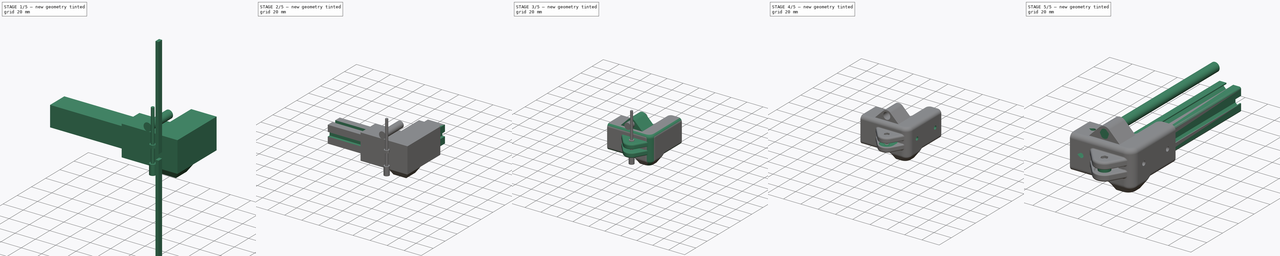
[diagram: build sequence overview — one tinted view per stage of 5, left to right]
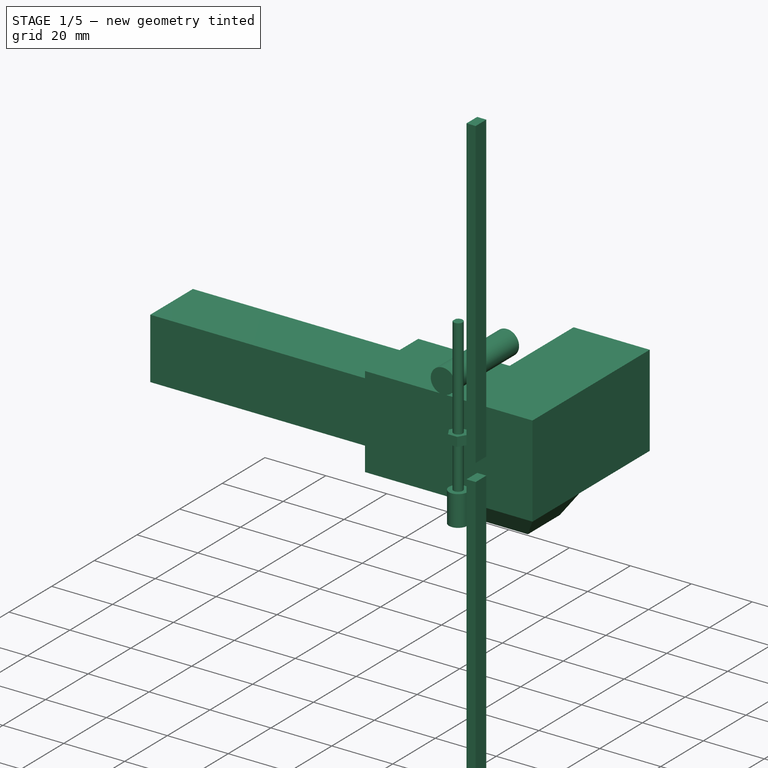
[diagram: stage 1 of 5 — iso view after this stage's code; geometry added in this stage tinted green]
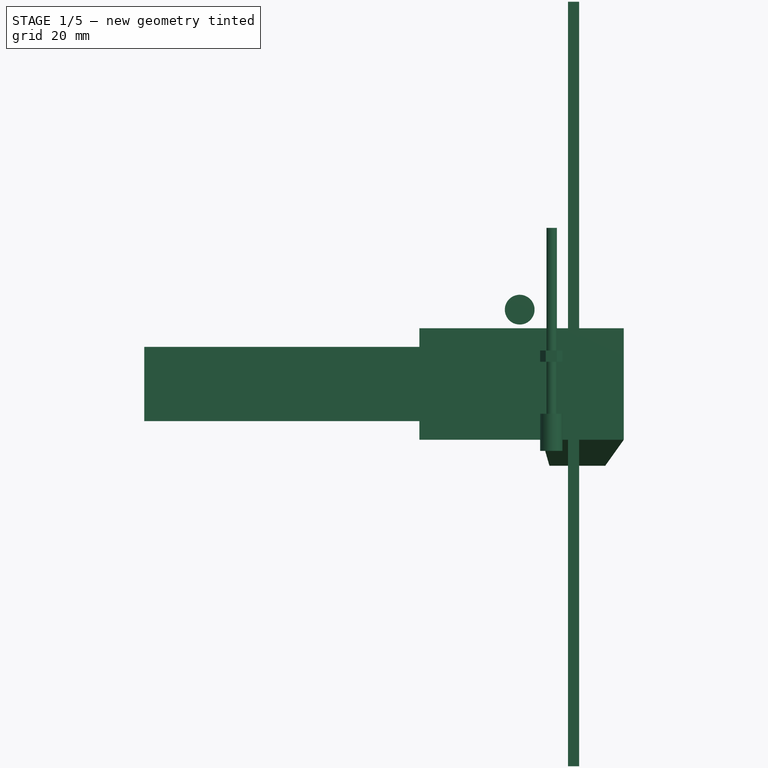
[diagram: stage 1 of 5 — front view after this stage's code; geometry added in this stage tinted green]
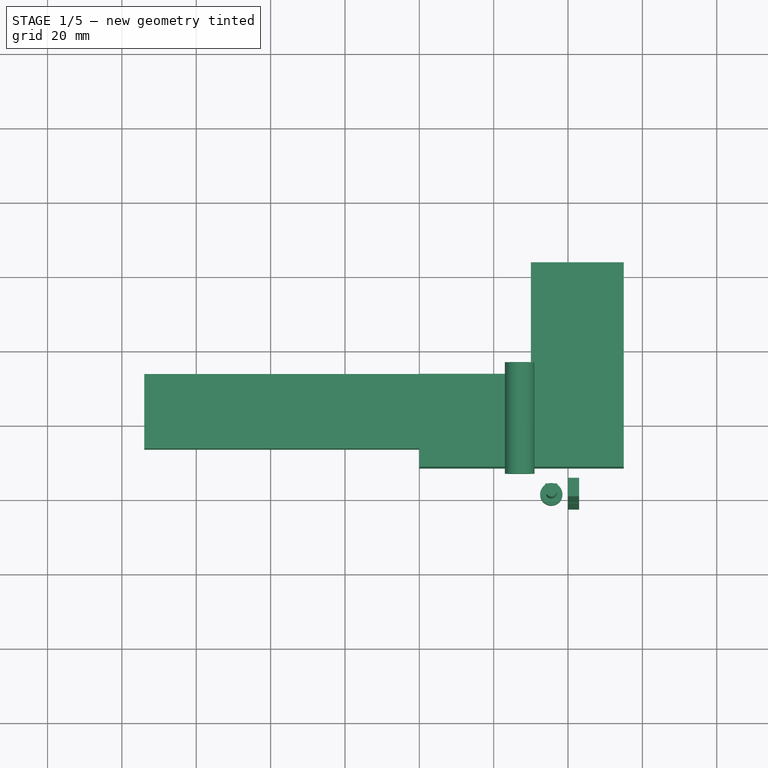
[diagram: stage 1 of 5 — top view after this stage's code; geometry added in this stage tinted green]
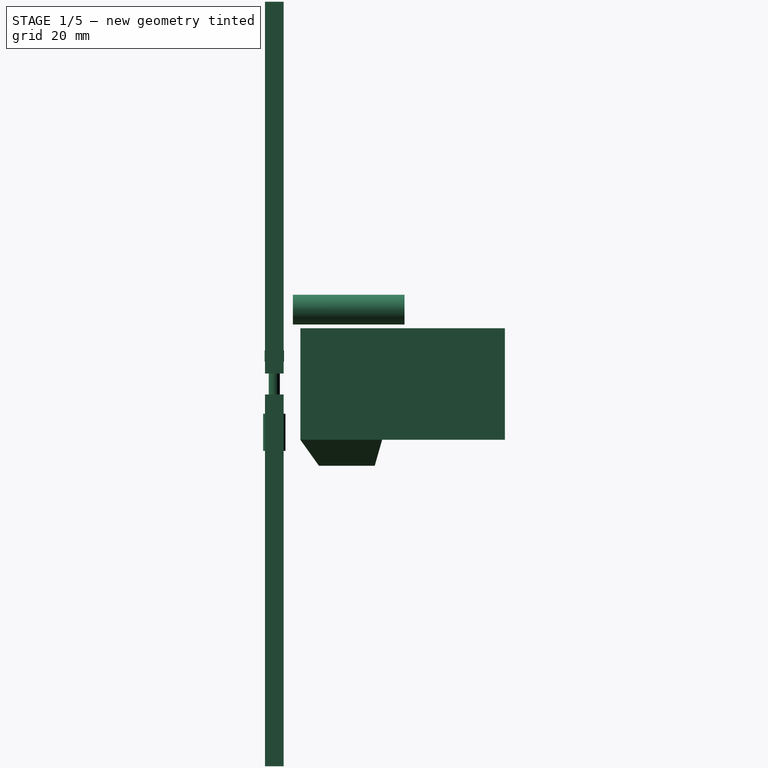
[diagram: stage 1 of 5 — right view after this stage's code; geometry added in this stage tinted green]
FCSTD DOCUMENT  (FreeCAD 0.16R6698 (Git))
Label: FrontCorner
License: All rights reserved
LicenseURL: http://en.wikipedia.org/wiki/All_rights_reserved
objects: Sketcher::SketchObject×18, Part::FeaturePython×16, Part::Cut×14, PartDesign::Pad×13, Part::Feature×4, App::DocumentObjectGroup×4, Part::Fillet×4, Part::MultiFuse×4, Part::Mirroring×3, Part::Box×3, Part::Chamfer×3, Part::Extrusion×2, Part::Compound×2, Part::MultiCommon×2, Spreadsheet::Sheet×1, PartDesign::Draft×1, Part::Loft×1, PartDesign::Pocket×1, Part::Cylinder×1
note: 106 computed .brp shape members not serialized (recipe doc carries the construction recipe); baked Part::Feature solids carry a one-line shape summary decoded from their .brp

FEATURE [Spreadsheet::Sheet] Spreadsheet  label="Parameters"
  cells = A1=Profile Tolerance; B1=0; A2=Smooth Rod Tolerance; B2=0
FEATURE [Sketcher::SketchObject] Sketch001  label="Base"
  sketch-geometry (6):
    g0: LineSegment StartX=15 StartY=62 StartZ=0 EndX=-10 EndY=62 EndZ=0
    g1: LineSegment StartX=-10 StartY=62 StartZ=0 EndX=-10 EndY=32 EndZ=0
    g2: LineSegment StartX=-10 StartY=32 StartZ=0 EndX=-40 EndY=32 EndZ=0
    g3: LineSegment StartX=-40 StartY=32 StartZ=0 EndX=-40 EndY=7 EndZ=0
    g4: LineSegment StartX=-40 StartY=7 StartZ=0 EndX=15 EndY=7 EndZ=0
    g5: LineSegment StartX=15 StartY=7 StartZ=0 EndX=15 EndY=62 EndZ=0
  constraints (18):
    c: Coincident(g0,g1)
    c: Coincident(g1,g2)
    c: Coincident(g2,g3)
    c: Coincident(g3,g4)
    c: Coincident(g5,g0)
    c: Horizontal(g0)
    c: Horizontal(g2)
    c: Horizontal(g4)
    c: Vertical(g3)
    c: Vertical(g1)
    c: Vertical(g5)
    c: DistanceX(g0,g0) = 25
    c: DistanceY(g3,g3) = 25
    c: DistanceY(g2) = 32
    c: DistanceX(g0) = -10
    c: DistanceX(g2,g2) = 30
    c: DistanceY(g1,g1) = 30
    c: Coincident(g4,g5)
FEATURE [Part::Feature] Cut004004008  label="LIdlerHold"
  Placement = pos=(0,22,0) rot=(0,0,1;0rad)
  shape: bbox 90 x 80 x 49 mm, 170 faces (baked)
FEATURE [PartDesign::Pad] Pad  label="Base001"
  Length = 30
  Length2 = 100
  Midplane = true
  Sketch = -> Sketch001
  Type = 0
FEATURE [Sketcher::SketchObject] Sketch037  label="IdlerBoltHead"
  sketch-geometry (1):
    g0: Circle CenterX=0 CenterY=0 CenterZ=0 NormalX=0 NormalY=0 NormalZ=1 Radius=3
  constraints (2):
    c: Coincident(g0,g-1)
    c: Radius(g0) = 3
FEATURE [PartDesign::Pad] Pad009  label="IdlerBoltHead001"
  Length = 10
  Length2 = 100
  Reversed = true
  Sketch = -> Sketch037
  Type = 0
FEATURE [Sketcher::SketchObject] Sketch038  label="IdlerBolt"
  Support = -> Pad009 [Face2]
  sketch-geometry (5):
    g0: ArcOfCircle CenterX=0 CenterY=0 CenterZ=0 NormalX=0 NormalY=0 NormalZ=1 Radius=1.5 StartAngle=3.66519 EndAngle=8.90118
    g1: LineSegment StartX=-1.29904 StartY=-0.75 StartZ=0 EndX=-1.29904 EndY=0.75 EndZ=0
    g2: LineSegment [constr] StartX=5.65685 StartY=0 StartZ=0 EndX=0 EndY=0 EndZ=0
    g3: LineSegment [constr] StartX=-1.29904 StartY=0.75 StartZ=0 EndX=0 EndY=0 EndZ=0
    g4: LineSegment [constr] StartX=-1.29904 StartY=-0.75 StartZ=0 EndX=0 EndY=0 EndZ=0
  constraints (12):
    c: Coincident(g2,g0)
    c: Coincident(g0,g1)
    c: Coincident(g1,g0)
    c: Horizontal(g2)
    c: Radius(g0) = 1.5
    c: Coincident(g0,g-1)
    c: Vertical(g1)
    c: Coincident(g3,g4)
    c: Coincident(g3,g-1)
    c: Coincident(g4,g0)
    c: Coincident(g3,g0)
    c: Angle(g3,g4) = 1.0472
FEATURE [PartDesign::Pad] Pad010  label="IdlerBolt001"
  Length = 50
  Length2 = 100
  Sketch = -> Sketch038
  Type = 0
FEATURE [PartDesign::Pad] Pad011  label="M3Nut001"
  Length = 3
  Length2 = 100
  Placement = pos=(0,0,15) rot=(0,0,1;0rad)
  Sketch = -> Sketch033
  Type = 0
FEATURE [Part::Box] Box004  label="Vert20Prof"
  Height = 20
  Length = 20
  Placement = pos=(-10,-10,-10) rot=(0,0,1;0rad)
  Width = 100
FEATURE [Part::Box] Box001  label="20GuideHalf"
  Height = 100
  Length = 3
  Placement = pos=(0,-2.5,2.825) rot=(0,0,1;0rad)
  Width = 5
FEATURE [Part::Box] Box002  label="20GuideHalf001"
  Height = 100
  Length = 3
  Placement = pos=(0,2.5,-2.825) rot=(1,0,0;3.14159rad)
  Width = 5
FEATURE [Part::FeaturePython] Clone028  label="Clone of Vert20Prof"  # Draft clone (typed FeaturePython)
  Objects = -> [Box004]
  Placement = pos=(-14,12,-10) rot=(0,0,1;1.5708rad)
  Scale = (1,1,1)
FEATURE [Part::Feature] Fillet001  label="FrontIdler"
  Placement = pos=(-4.5,0,-2) rot=(0,0,1;0rad)
  shape: bbox 15.35 x 15.35 x 5 mm, 10 faces (baked)
FEATURE [App::DocumentObjectGroup] Group  label="Reference"
  Group = -> [Clone018,Fillet002,Sketch,Part__Mirroring001,Part__Mirroring,Cut004004008,Fillet001]
FEATURE [Sketcher::SketchObject] Sketch045  label="FootBase"
  Placement = pos=(0,0,-15) rot=(1,0,0;3.14159rad)
  Support = -> Pad [Face7]
  sketch-geometry (4):
    g0: LineSegment StartX=15 StartY=-7 StartZ=0 EndX=-7 EndY=-7 EndZ=0
    g1: LineSegment StartX=-7 StartY=-7 StartZ=0 EndX=-7 EndY=-29 EndZ=0
    g2: LineSegment StartX=-7 StartY=-29 StartZ=0 EndX=15 EndY=-29 EndZ=0
    g3: LineSegment StartX=15 StartY=-29 StartZ=0 EndX=15 EndY=-7 EndZ=0
  constraints (12):
    c: Coincident(g0,g1)
    c: Coincident(g1,g2)
    c: Coincident(g2,g3)
    c: Coincident(g3,g0)
    c: Horizontal(g0)
    c: Horizontal(g2)
    c: Vertical(g1)
    c: Vertical(g3)
    c: DistanceY(g0) = -7
    c: DistanceX(g0) = 15
    c: DistanceX(g0,g0) = 22
    c: DistanceY(g1,g1) = 22
FEATURE [Sketcher::SketchObject] Sketch046  label="Foot"
  Placement = pos=(0,0,-22) rot=(1,0,0;3.14159rad)
  sketch-geometry (5):
    g0: LineSegment StartX=10 StartY=-12 StartZ=0 EndX=-5 EndY=-12 EndZ=0
    g1: LineSegment StartX=-5 StartY=-12 StartZ=0 EndX=-5 EndY=-27 EndZ=0
    g2: LineSegment StartX=-5 StartY=-27 StartZ=0 EndX=10 EndY=-27 EndZ=0
    g3: LineSegment StartX=10 StartY=-27 StartZ=0 EndX=10 EndY=-12 EndZ=0
    g4: GeomPoint [constr] X=2.5 Y=-19.5 Z=0
  constraints (13):
    c: Coincident(g0,g1)
    c: Coincident(g1,g2)
    c: Coincident(g2,g3)
    c: Coincident(g3,g0)
    c: Horizontal(g0)
    c: Horizontal(g2)
    c: Vertical(g1)
    c: Vertical(g3)
    c: DistanceX(g0,g0) = 15
    c: Symmetric(g0,g2,g4)
    c: Equal(g1,g0)
    c: DistanceY(g4) = -19.5
    c: DistanceX(g4) = 2.5
FEATURE [Part::Loft] Loft  label="Foot001"
  Closed = false
  Ruled = false
  Sections = -> [Sketch045,Sketch046]
  Solid = true
FEATURE [Part::MultiFuse] Fusion002  label="Foot002"
  Shapes = -> [Loft,Pad]
FEATURE [Part::FeaturePython] Clone032  label="Clone of IdlerBolt001"  # Draft clone (typed FeaturePython)
  Objects = -> [Pad010]
  Placement = pos=(-4.5,0,-8) rot=(0,0,1;0rad)
  Scale = (1,1,1)
FEATURE [Part::FeaturePython] Clone033  label="Clone of M3Nut001"  # Draft clone (typed FeaturePython)
  Objects = -> [Pad011]
  Placement = pos=(-4.5,0,6) rot=(0,0,1;1.5708rad)
  Scale = (1,1,1)
FEATURE [Part::MultiFuse] Fusion004  label="IdlerBolt002"
  Shapes = -> [Clone032,Clone033]
FEATURE [Part::Cylinder] Cylinder  label="SmRod"
  Angle = 360
  Height = 30
  Placement = pos=(-13,5,20) rot=(-1,0,0;1.5708rad)
  Radius = 4
  expr: Radius = 4 + Parameters.B2
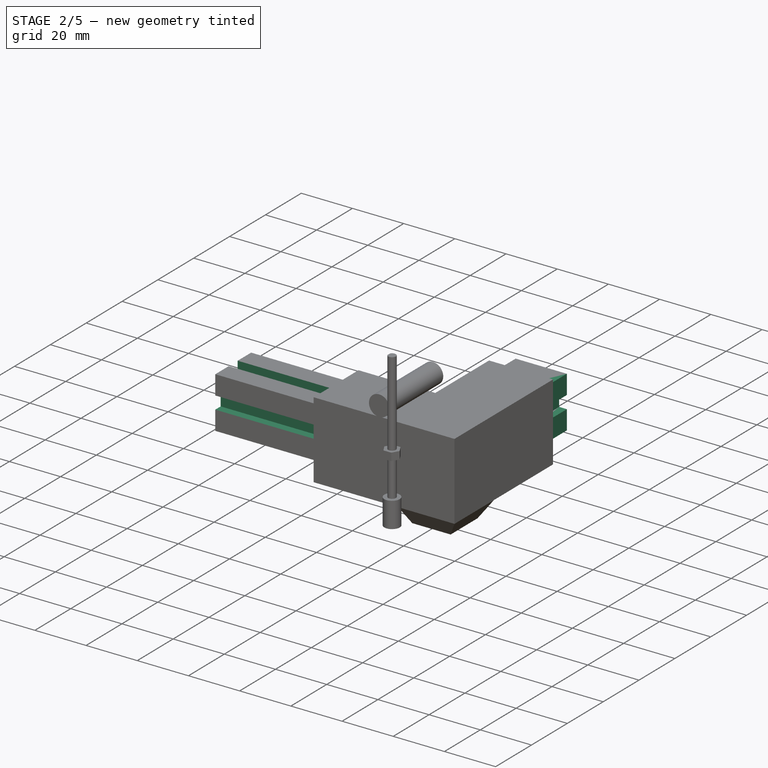
[diagram: stage 2 of 5 — iso view after this stage's code; geometry added in this stage tinted green]
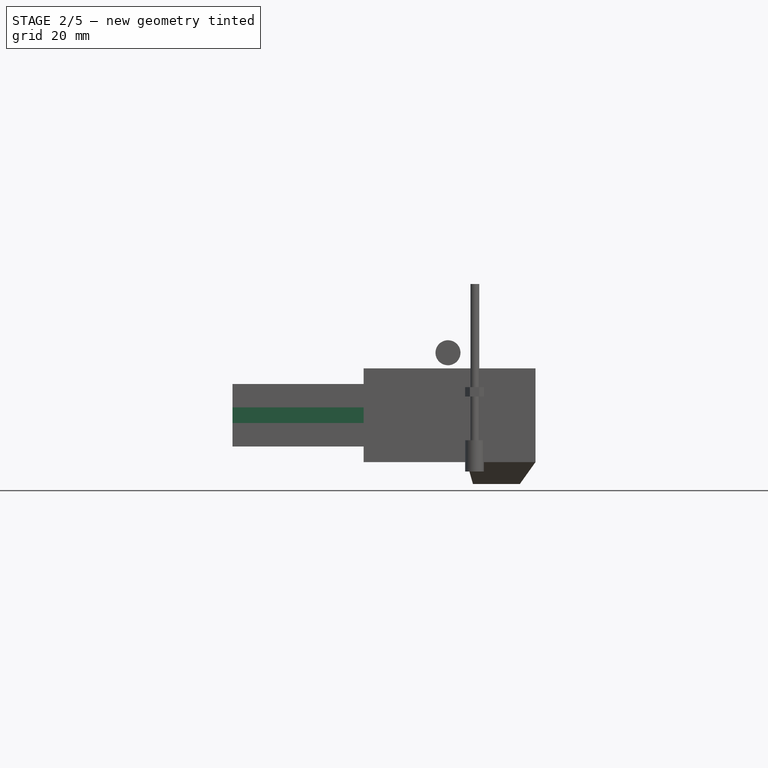
[diagram: stage 2 of 5 — front view after this stage's code; geometry added in this stage tinted green]
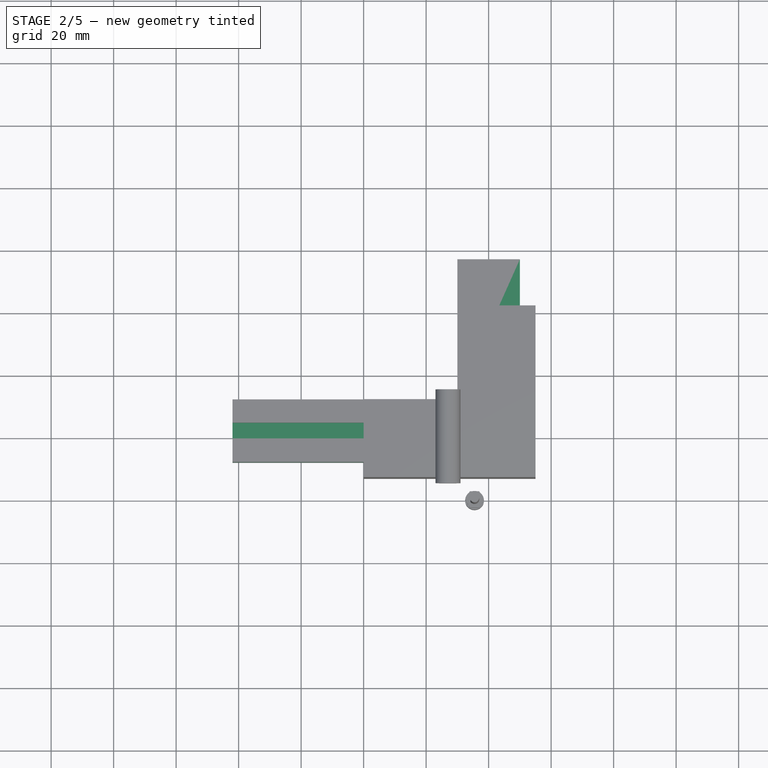
[diagram: stage 2 of 5 — top view after this stage's code; geometry added in this stage tinted green]
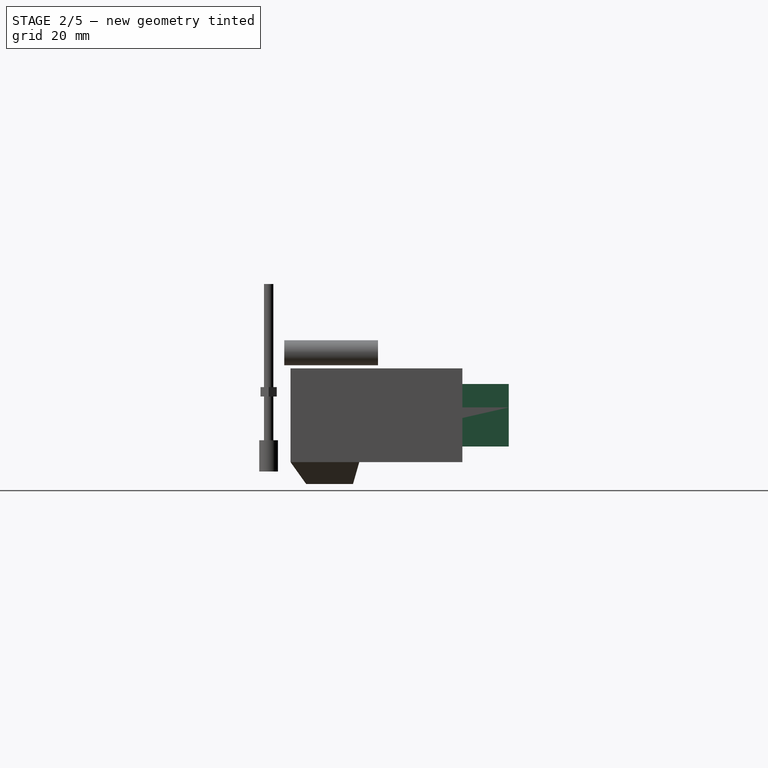
[diagram: stage 2 of 5 — right view after this stage's code; geometry added in this stage tinted green]
FEATURE [Sketcher::SketchObject] Sketch002  label="IdlerHold"
  sketch-geometry (11):
    g0: LineSegment [constr] StartX=15 StartY=57.5009 StartZ=0 EndX=-10 EndY=57.5009 EndZ=0
    g1: LineSegment [constr] StartX=-10 StartY=57.5009 StartZ=0 EndX=-10 EndY=32 EndZ=0
    g2: LineSegment [constr] StartX=-10 StartY=32 StartZ=0 EndX=-39.2593 EndY=32 EndZ=0
    g3: LineSegment [constr] StartX=-39.2593 StartY=32 StartZ=0 EndX=-39.2593 EndY=7 EndZ=0
    g4: LineSegment [constr] StartX=-39.2593 StartY=7 StartZ=0 EndX=7 EndY=7 EndZ=0
    g5: LineSegment [constr] StartX=15 StartY=15 StartZ=0 EndX=15 EndY=57.5009 EndZ=0
    g6: ArcOfCircle [constr] CenterX=7 CenterY=15 CenterZ=0 NormalX=0 NormalY=0 NormalZ=1 Radius=8 StartAngle=4.71239 EndAngle=6.28319
    g7: LineSegment StartX=-22.1224 StartY=7 StartZ=0 EndX=-11.3944 EndY=-5.78509 EndZ=0
    g8: LineSegment StartX=11.5416 StartY=9.78488 StartZ=0 EndX=3.29421 EndY=-4.50003 EndZ=0
    g9: LineSegment StartX=-22.1224 StartY=7 StartZ=0 EndX=11.5416 EndY=9.78488 EndZ=0
    g10: ArcOfCircle CenterX=-4.5 CenterY=0 CenterZ=0 NormalX=0 NormalY=0 NormalZ=1 Radius=9 StartAngle=3.83972 EndAngle=5.75958
  constraints (30):
    c: Coincident(g0,g1)
    c: Coincident(g1,g2)
    c: Coincident(g2,g3)
    c: Coincident(g3,g4)
    c: Coincident(g5,g0)
    c: Horizontal(g0)
    c: Horizontal(g2)
    c: Horizontal(g4)
    c: Vertical(g3)
    c: Vertical(g1)
    c: Vertical(g5)
    c: DistanceX(g0,g0) = 25
    c: DistanceY(g3,g3) = 25
    c: DistanceY(g2) = 32
    c: DistanceX(g0) = -10
    c: Tangent(g5,g6) = -1.5708
    c: Tangent(g4,g6) = -1.5708
    c: Radius(g6) = 8
    c: Coincident(g7,g9)
    c: Coincident(g8,g9)
    c: PointOnObject(g10,g-1)
    c: DistanceX(g10) = -4.5
    c: Coincident(g10,g8)
    c: Coincident(g10,g7)
    c: PointOnObject(g7,g4)
    c: Tangent(g7,g10)
    c: Tangent(g10,g8)
    c: Radius(g10) = 9
    c: Angle(g7) = -0.872665
    c: Angle(g8) = -2.0944
FEATURE [Sketcher::SketchObject] Sketch003  label="ProfileCavity"
  expr: Constraints[11] = 20 + Parameters.B1
  sketch-geometry (6):
    g0: LineSegment StartX=10 StartY=76.8219 StartZ=0 EndX=-10 EndY=76.8219 EndZ=0
    g1: LineSegment StartX=-10 StartY=76.8219 StartZ=0 EndX=-10 EndY=32 EndZ=0
    g2: LineSegment StartX=-10 StartY=32 StartZ=0 EndX=-81.949 EndY=32 EndZ=0
    g3: LineSegment StartX=-81.949 StartY=32 StartZ=0 EndX=-81.949 EndY=12 EndZ=0
    g4: LineSegment StartX=-81.949 StartY=12 StartZ=0 EndX=10 EndY=12 EndZ=0
    g5: LineSegment StartX=10 StartY=12 StartZ=0 EndX=10 EndY=76.8219 EndZ=0
  constraints (16):
    c: Coincident(g0,g1)
    c: Coincident(g1,g2)
    c: Coincident(g2,g3)
    c: Coincident(g3,g4)
    c: Coincident(g5,g0)
    c: Horizontal(g0)
    c: Horizontal(g2)
    c: Horizontal(g4)
    c: Vertical(g3)
    c: Vertical(g1)
    c: Vertical(g5)
    c: DistanceX(g0,g0) = 20
    c: DistanceY(g2) = 32
    c: DistanceX(g0) = -10
    c: Equal(g3,g0)
    c: Coincident(g4,g5)
FEATURE [PartDesign::Pad] Pad002  label="ProfileCavity001"
  Length = 20
  Length2 = 100
  Midplane = true
  Sketch = -> Sketch003
  Type = 0
  expr: Length = 20 + Parameters.B1
FEATURE [Part::Compound] Compound002  label="20Guide"
  Links = -> [Box001,Box002]
FEATURE [Part::FeaturePython] Clone025  label="Clone of 20Guide"  # Draft clone (typed FeaturePython)
  Objects = -> [Compound002]
  Placement = pos=(10,22,0) rot=(0,0.707107,0.707107;3.14159rad)
  Scale = (1,1,1)
FEATURE [Part::FeaturePython] Clone026  label="Clone of Clone of 20Guide"  # Draft clone (typed FeaturePython)
  Objects = -> [Clone025]
  Placement = pos=(10,52,0) rot=(0,0.707107,0.707107;3.14159rad)
  Scale = (1,1,1)
FEATURE [Part::MultiCommon] Common  label="SideSlots"
  Shapes = -> [Clone025,Clone026]
FEATURE [Part::FeaturePython] Clone027  label="Clone of 20Guide001"  # Draft clone (typed FeaturePython)
  Objects = -> [Compound002]
  Placement = pos=(-30,22,10) rot=(0,1,0;1.5708rad)
  Scale = (1,1,1)
FEATURE [Part::MultiCommon] Common001  label="UpperSlot"
  Placement = pos=(0,22,-22) rot=(1,0,0;1.5708rad)
  Shapes = -> [Clone027,Clone028]
FEATURE [App::DocumentObjectGroup] Group002  label="Guides_src"
  Group = -> [Box004,Compound002,Compound003,Common001]
FEATURE [PartDesign::Draft] Draft  label="UpperSlot001"
  Angle = 45
  Base = -> Common001 [Face5,Face11]
  NeutralPlane = -> Common001 [Face1]
  Placement = pos=(0,22,-22) rot=(1,0,0;1.5708rad)
  Reversed = true
FEATURE [Part::FeaturePython] Clone029  label="Clone of UpperSlot001"  # Draft clone (typed FeaturePython)
  Objects = -> [Draft]
  Scale = (1,1,1)
FEATURE [Part::FeaturePython] Clone030  label="Clone of UpperSlot002"  # Draft clone (typed FeaturePython)
  Objects = -> [Draft]
  Placement = pos=(0,44,0) rot=(1,0,0;3.14159rad)
  Scale = (1,1,1)
FEATURE [Part::Cut] Cut
  Base = -> Pad002
  Tool = -> Clone029
FEATURE [Part::Cut] Cut004004009
  Base = -> Cut
  Tool = -> Draft
FEATURE [Part::Cut] Cut004004010
  Base = -> Cut004004009
  Tool = -> Clone030
FEATURE [Part::Cut] Cut004004011
  Base = -> Cut004004010
  Tool = -> Common
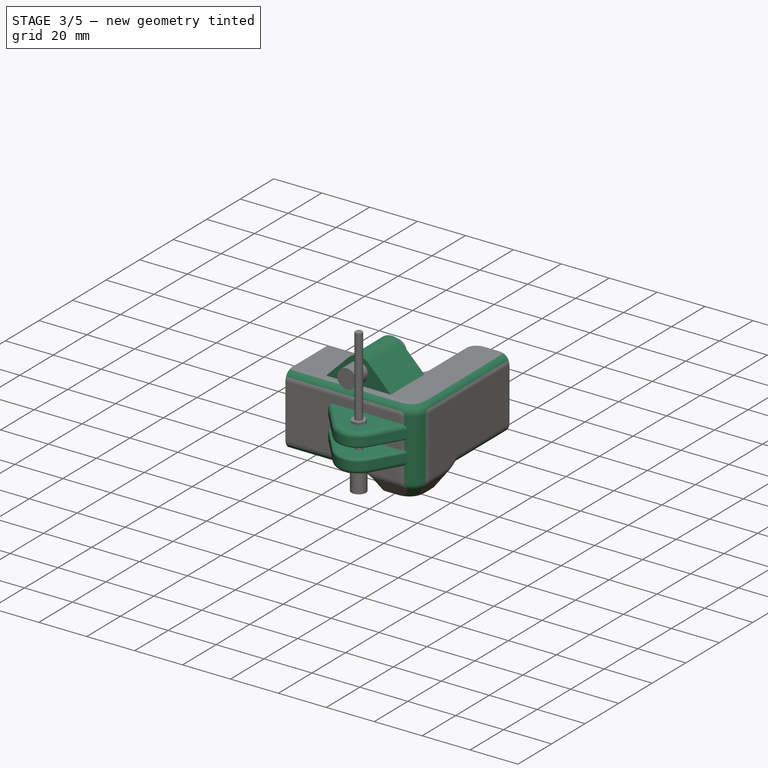
[diagram: stage 3 of 5 — iso view after this stage's code; geometry added in this stage tinted green]
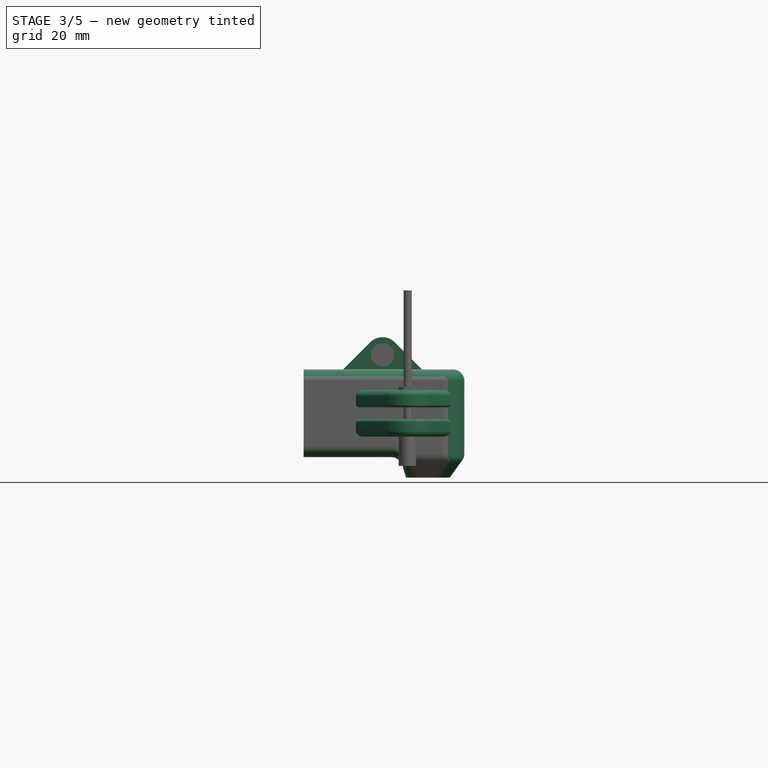
[diagram: stage 3 of 5 — front view after this stage's code; geometry added in this stage tinted green]
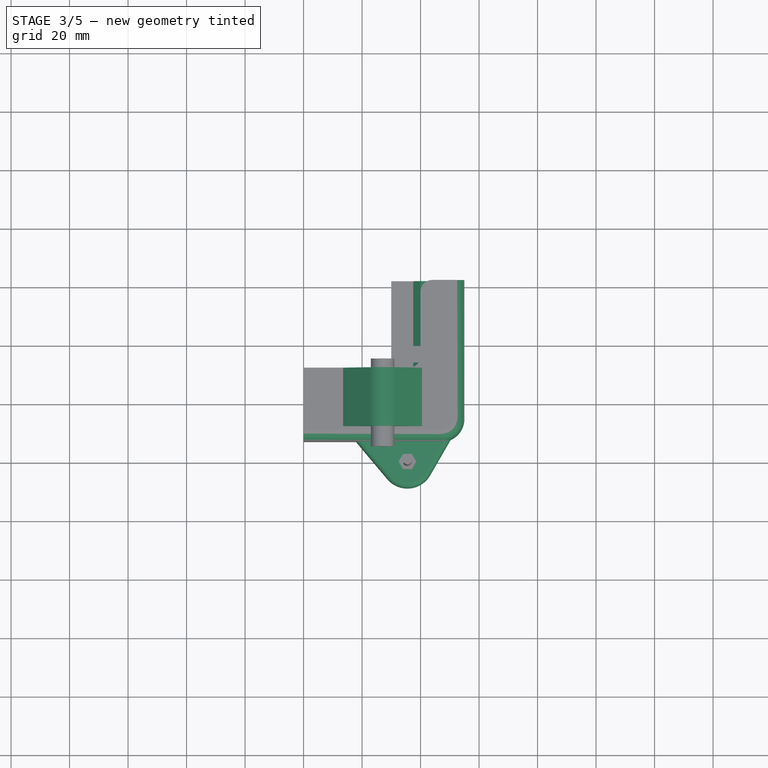
[diagram: stage 3 of 5 — top view after this stage's code; geometry added in this stage tinted green]
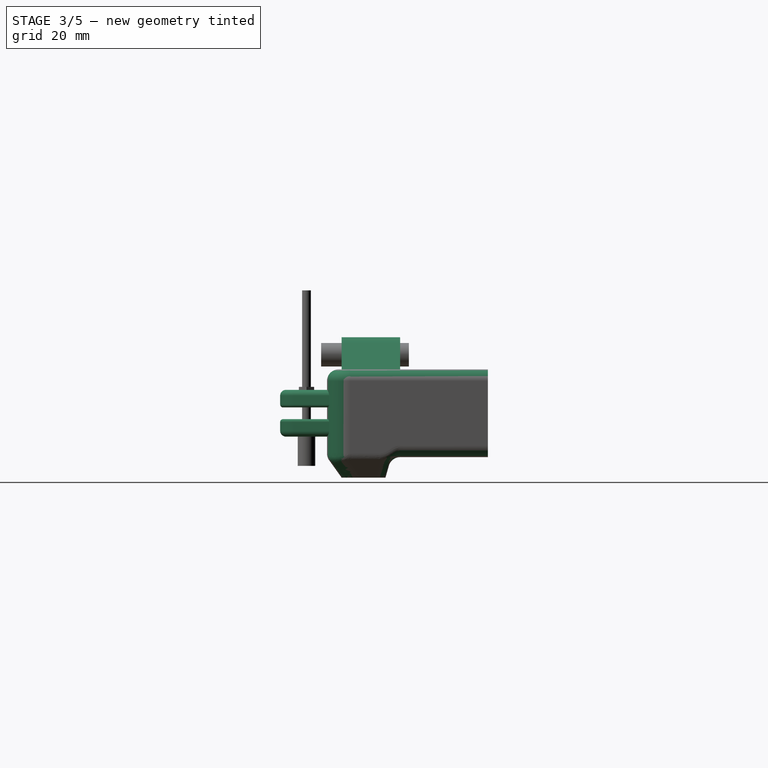
[diagram: stage 3 of 5 — right view after this stage's code; geometry added in this stage tinted green]
FEATURE [PartDesign::Pad] Pad015  label="IdlerHold001"
  Length = 6
  Length2 = 100
  Sketch = -> Sketch002
  Type = 0
FEATURE [Part::Fillet] Fillet005
  Base = -> Pad015
  Edges = 2 edges: [Edge11 r=1,Edge12 r=2]
  Placement = pos=(0,0,2) rot=(0,0,1;0rad)
FEATURE [Part::Mirroring] Part__Mirroring002  label="Fillet005 (Mirror #3)"
  Base = (0,0,0)
  Normal = (0,0,1)
  Source = -> Fillet005
FEATURE [Sketcher::SketchObject] Sketch043  label="20AngledGuideSketch"
  sketch-geometry (3):
    g0: LineSegment StartX=0 StartY=2.5 StartZ=0 EndX=-2.5 EndY=0 EndZ=0
    g1: LineSegment StartX=-2.5 StartY=0 StartZ=0 EndX=2.5 EndY=0 EndZ=0
    g2: LineSegment StartX=2.5 StartY=0 StartZ=0 EndX=0 EndY=2.5 EndZ=0
  constraints (9):
    c: Coincident(g0,g1)
    c: Coincident(g1,g2)
    c: Coincident(g2,g0)
    c: Horizontal(g1)
    c: PointOnObject(g0,g-1)
    c: PointOnObject(g0,g-2)
    c: Symmetric(g1,g0,g-2)
    c: Perpendicular(g2,g0)
    c: DistanceX(g1) = 5
FEATURE [Part::Extrusion] Extrude  label="20AngledGuideHalf"
  Base = -> Sketch043
  Dir = (0,0,100)
  Placement = pos=(0,0,2.825) rot=(0,0,1;0rad)
  Solid = true
FEATURE [Part::Extrusion] Extrude001  label="20AngledGuideHalf001"
  Base = -> Sketch043
  Dir = (0,0,-100)
  Placement = pos=(0,0,-2.825) rot=(0,0,1;0rad)
  Solid = true
FEATURE [Part::Compound] Compound003  label="20AngledGuide"
  Links = -> [Extrude,Extrude001]
FEATURE [Part::FeaturePython] Clone031  label="Clone of 20AngledGuide"  # Draft clone (typed FeaturePython)
  Objects = -> [Compound003]
  Placement = pos=(0,37,-10) rot=(1,0,0;1.5708rad)
  Scale = (1,1,1)
FEATURE [Part::Cut] Cut004004012  label="ProfileCavity002"
  Base = -> Cut004004011
  Tool = -> Clone031
FEATURE [Part::Fillet] Fillet
  Base = -> Fusion002
  Edges = 13 edges: [Edge5 r=4,Edge6 r=4,Edge7 r=8,Edge8 r=4,Edge9 r=4,Edge10 r=4,Edge11 r=4,Edge12 r=4,Edge14 r=4,Edge15 r=4,Edge16 r=8,Edge21 r=4,Edge22 r=4]
FEATURE [Sketcher::SketchObject] Sketch042  label="AntiCollitionCut"
  Placement = pos=(0,0,15) rot=(0,0,1;0rad)
  Support = -> Fillet [Face31]
  sketch-geometry (4):
    g0: LineSegment StartX=-14.9846 StartY=64.9854 StartZ=0 EndX=0 EndY=64.9854 EndZ=0
    g1: LineSegment StartX=0 StartY=64.9854 StartZ=0 EndX=0 EndY=32 EndZ=0
    g2: LineSegment StartX=0 StartY=32 StartZ=0 EndX=-14.9846 EndY=32 EndZ=0
    g3: LineSegment StartX=-14.9846 StartY=32 StartZ=0 EndX=-14.9846 EndY=64.9854 EndZ=0
  constraints (10):
    c: Coincident(g0,g1)
    c: Coincident(g1,g2)
    c: Coincident(g2,g3)
    c: Coincident(g3,g0)
    c: Horizontal(g0)
    c: Horizontal(g2)
    c: Vertical(g1)
    c: Vertical(g3)
    c: PointOnObject(g0,g-2)
    c: DistanceY(g1) = 32
FEATURE [PartDesign::Pocket] Pocket  label="AntiCollitionCut001"
  Length = 20
  Sketch = -> Sketch042
  Type = 0
FEATURE [Part::Fillet] Fillet003
  Base = -> Pocket
  Edges = 2 edges r=4: [Edge69,Edge79]
FEATURE [Sketcher::SketchObject] Sketch041  label="SmRodHolder"
  Placement = pos=(0,32,0) rot=(0,0.707107,0.707107;3.14159rad)
  Support = -> Fillet003 [Face14]
  sketch-geometry (4):
    g0: LineSegment StartX=8.75736 StartY=24.2426 StartZ=0 EndX=-2.92753 EndY=12.5578 EndZ=0
    g1: LineSegment StartX=-2.92753 StartY=12.5578 StartZ=0 EndX=28.9275 EndY=12.5578 EndZ=0
    g2: LineSegment StartX=28.9275 StartY=12.5578 StartZ=0 EndX=17.2426 EndY=24.2427 EndZ=0
    g3: ArcOfCircle CenterX=13 CenterY=20 CenterZ=0 NormalX=0 NormalY=0 NormalZ=1 Radius=6 StartAngle=0.785402 EndAngle=2.3562
  constraints (12):
    c: Coincident(g0,g1)
    c: Coincident(g1,g2)
    c: Horizontal(g1)
    c: Coincident(g0,g3)
    c: Coincident(g3,g2)
    c: Tangent(g3,g2)
    c: Tangent(g0,g3)
    c: DistanceY(g3) = 20
    c: DistanceX(g3) = 13
    c: Radius(g3) = 6
    c: Perpendicular(g0,g2)
    c: Angle(g2) = 2.35619
FEATURE [PartDesign::Pad] Pad014  label="SmRodHolder001"
  Length = 20
  Length2 = 100
  Reversed = true
  Sketch = -> Sketch041
  Type = 0
FEATURE [Part::Cut] Cut004004013  label="ProfileCavity003"
  Base = -> Pad014
  Tool = -> Cut004004012
FEATURE [Part::MultiFuse] Fusion
  Shapes = -> [Cut004004013,Fillet005]
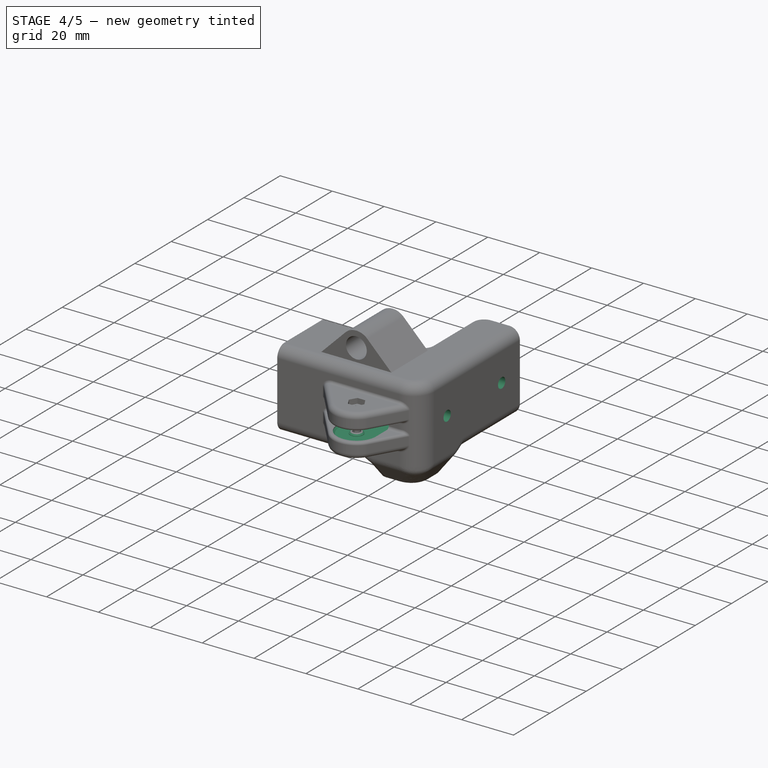
[diagram: stage 4 of 5 — iso view after this stage's code; geometry added in this stage tinted green]
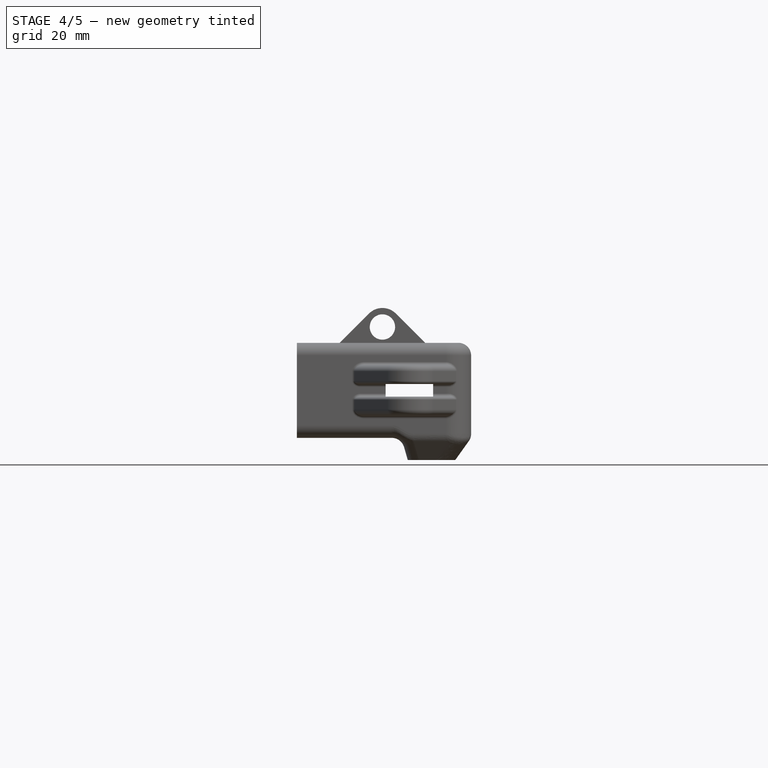
[diagram: stage 4 of 5 — front view after this stage's code; geometry added in this stage tinted green]
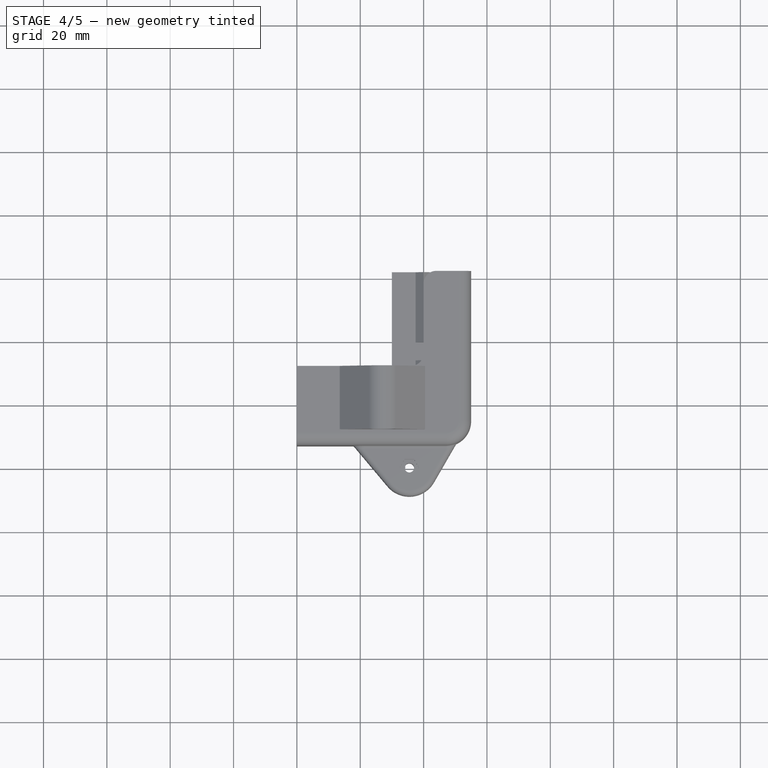
[diagram: stage 4 of 5 — top view after this stage's code; geometry added in this stage tinted green]
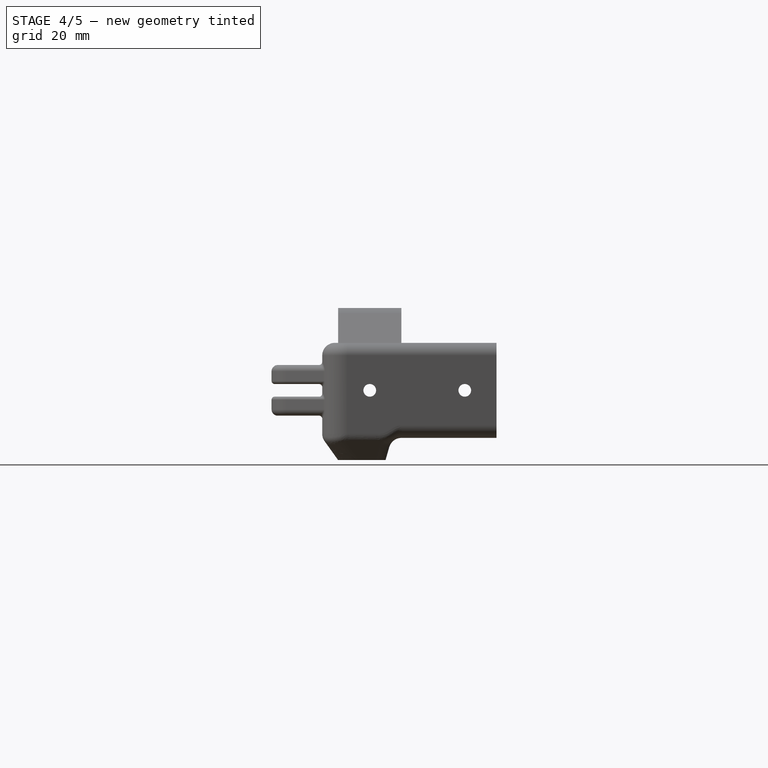
[diagram: stage 4 of 5 — right view after this stage's code; geometry added in this stage tinted green]
FEATURE [Sketcher::SketchObject] Sketch039  label="M4BoltHead"
  sketch-geometry (1):
    g0: Circle CenterX=0 CenterY=0 CenterZ=0 NormalX=0 NormalY=0 NormalZ=1 Radius=4
  constraints (2):
    c: Coincident(g0,g-1)
    c: Radius(g0) = 4
FEATURE [PartDesign::Pad] Pad012  label="M4BoltHead001"
  Length = 10
  Length2 = 100
  Reversed = true
  Sketch = -> Sketch039
  Type = 0
FEATURE [Sketcher::SketchObject] Sketch040  label="M4Bolt"
  Support = -> Pad012 [Face2]
  sketch-geometry (1):
    g0: Circle CenterX=0 CenterY=0 CenterZ=0 NormalX=0 NormalY=0 NormalZ=1 Radius=2
  constraints (2):
    c: Coincident(g0,g-1)
    c: Radius(g0) = 2
FEATURE [PartDesign::Pad] Pad013  label="M4Bolt001"
  Length = 20
  Length2 = 100
  Sketch = -> Sketch040
  Type = 0
FEATURE [App::DocumentObjectGroup] Group001  label="Bolt_src"
  Group = -> [Pad007,Pad008,Pad009,Pad010,Pad011,Pad012,Pad013]
FEATURE [Part::FeaturePython] Clone  label="Clone of M4Bolt001"  # Draft clone (typed FeaturePython)
  Objects = -> [Pad013]
  Placement = pos=(17,22,0) rot=(0,-1,0;1.5708rad)
  Scale = (1,1,1)
FEATURE [Part::FeaturePython] Array  label="SideBolts"  # Draft array (typed FeaturePython)
  Angle = 360
  ArrayType = 0
  Axis = (0,0,1)
  Base = -> Clone
  Center = (0,0,0)
  Fuse = false
  IntervalAxis = (0,0,0)
  IntervalX = (1,0,0)
  IntervalY = (0,30,0)
  IntervalZ = (0,0,0)
  NumberPolar = 1
  NumberX = 1
  NumberY = 2
  NumberZ = 1
FEATURE [Sketcher::SketchObject] Sketch044  label="IdlerCavity"
  sketch-geometry (4):
    g0: ArcOfCircle CenterX=-4.5 CenterY=0 CenterZ=0 NormalX=0 NormalY=0 NormalZ=1 Radius=7.5 StartAngle=3.14159 EndAngle=6.28319
    g1: LineSegment StartX=-12 StartY=1.67436e-07 StartZ=0 EndX=-12 EndY=33.262 EndZ=0
    g2: LineSegment StartX=-12 StartY=33.262 StartZ=0 EndX=3 EndY=33.262 EndZ=0
    g3: LineSegment StartX=3 StartY=33.262 StartZ=0 EndX=3 EndY=-1.9662e-07 EndZ=0
  constraints (12):
    c: Coincident(g1,g2)
    c: Coincident(g2,g3)
    c: Vertical(g3)
    c: Vertical(g1)
    c: Coincident(g1,g0)
    c: Coincident(g0,g3)
    c: Tangent(g0,g3)
    c: Tangent(g1,g0)
    c: Horizontal(g2)
    c: PointOnObject(g0,g-1)
    c: DistanceX(g0) = -4.5
    c: Radius(g0) = 7.5
FEATURE [PartDesign::Pad] Pad016  label="IdlerCavity001"
  Length = 5.8
  Length2 = 100
  Midplane = true
  Sketch = -> Sketch044
  Type = 0
FEATURE [Part::Chamfer] Chamfer  label="PrintableChamfer"
  Base = -> Pad016
  Edges = 2 edges r=0.6: [Edge3,Edge4]
FEATURE [Part::MultiFuse] Fusion003  label="IdlerHold002"
  Shapes = -> [Fusion,Part__Mirroring002]
FEATURE [Part::Fillet] Fillet006
  Base = -> Fusion003
  Edges = 2 edges r=1: [Edge125,Edge135]
FEATURE [Part::Cut] Cut004004014  label="StringCavity"
  Base = -> Fillet006
  Tool = -> Chamfer
FEATURE [Sketcher::SketchObject] Sketch047  label="BearingPad"
  Placement = pos=(0,0,-2.9) rot=(0,0,1;0rad)
  Support = -> Cut004004014 [Face73]
  sketch-geometry (1):
    g0: Circle CenterX=-4.5 CenterY=0 CenterZ=0 NormalX=0 NormalY=0 NormalZ=1 Radius=2.5
  constraints (3):
    c: PointOnObject(g0,g-1)
    c: DistanceX(g0) = -4.5
    c: Radius(g0) = 2.5
FEATURE [PartDesign::Pad] Pad017  label="BearingPad001"
  Length = 0.85
  Length2 = 100
  Sketch = -> Sketch047
  Type = 0
FEATURE [Part::Chamfer] Chamfer001  label="PrintableChamfer001"
  Base = -> Pad017
  Edges = 1 edges r=0.7: [Edge1]
FEATURE [Part::Cut] Cut004004015  label="IdlerBoltCut"
  Base = -> Chamfer001
  Tool = -> Fusion004
FEATURE [Part::Cut] Cut004004016  label="SmRodCut"
  Base = -> Cut004004015
  Tool = -> Cylinder
FEATURE [Part::Cut] Cut004004017  label="SideBoltsCut"
  Base = -> Cut004004016
  Tool = -> Array
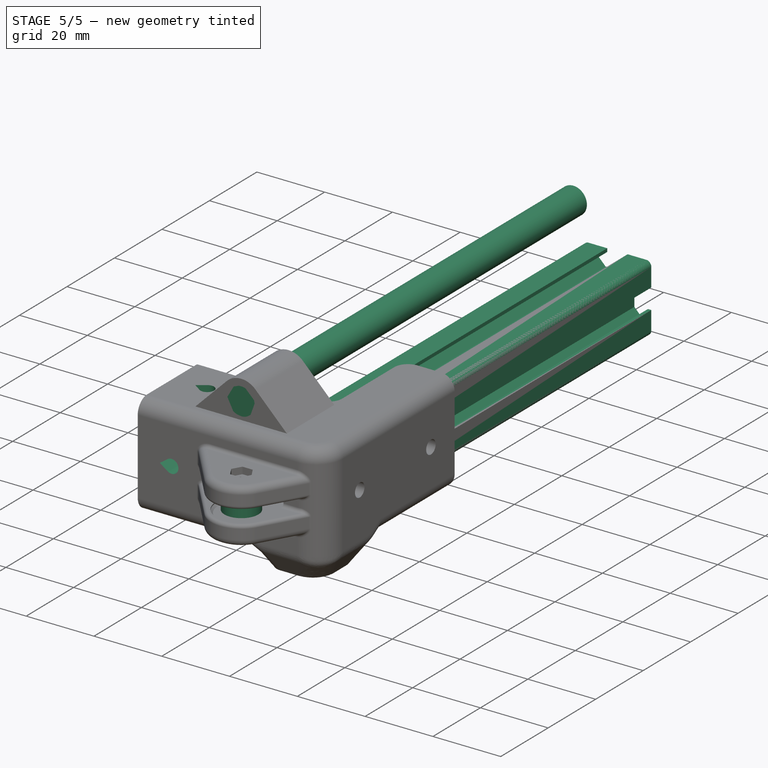
[diagram: stage 5 of 5 — iso view after this stage's code; geometry added in this stage tinted green]
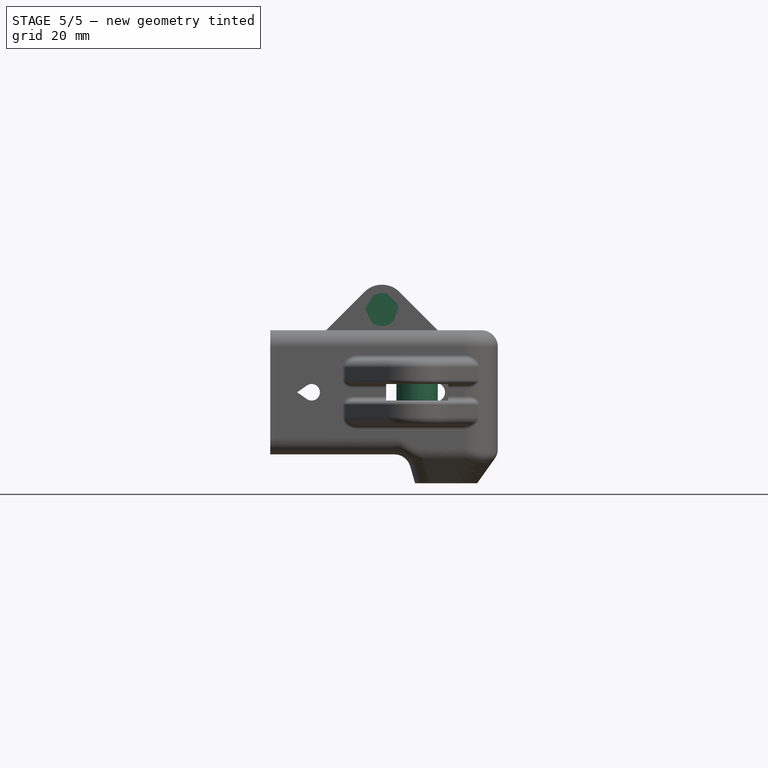
[diagram: stage 5 of 5 — front view after this stage's code; geometry added in this stage tinted green]
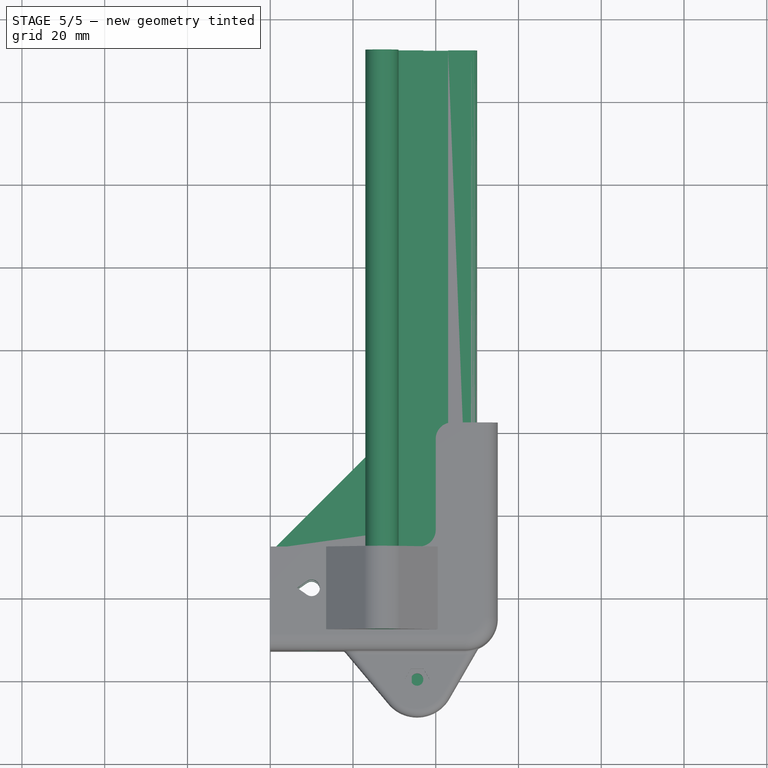
[diagram: stage 5 of 5 — top view after this stage's code; geometry added in this stage tinted green]
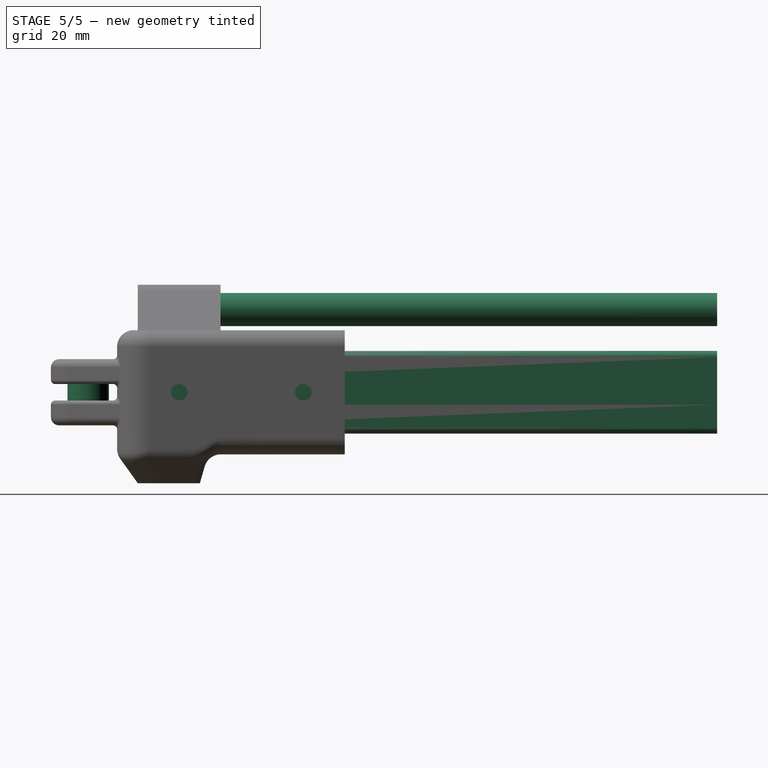
[diagram: stage 5 of 5 — right view after this stage's code; geometry added in this stage tinted green]
FEATURE [Part::FeaturePython] Clone018  label="Idler623ZZ"  # WARN: FeaturePython — macro-defined, semantics opaque (R4)
  Placement = pos=(-4.5,0,-2) rot=(0,0,1;0rad)
  Scale = (1,1,1)
FEATURE [Part::Feature] Fillet002  label="T slot extrusion 20x20x200.001"
  Placement = pos=(-210,12,-10) rot=(0,-1,0;1.5708rad)
  shape: bbox 200 x 20 x 20 mm, 51 faces (baked)
FEATURE [Sketcher::SketchObject] Sketch  label="StringPath"
  Placement = pos=(-110,82,0) rot=(0,0,1;0rad)
  sketch-geometry (18):
    g0: ArcOfCircle CenterX=-106 CenterY=90 CenterZ=0 NormalX=0 NormalY=0 NormalZ=1 Radius=5.5 StartAngle=6.27583 EndAngle=9.42478
    g1: ArcOfCircle CenterX=106 CenterY=90 CenterZ=0 NormalX=0 NormalY=0 NormalZ=1 Radius=5.5 StartAngle=8.0041e-08 EndAngle=3.17907
    g2: ArcOfCircle CenterX=105.5 CenterY=-82 CenterZ=0 NormalX=0 NormalY=0 NormalZ=1 Radius=6 StartAngle=3.09595 EndAngle=6.28319
    g3: ArcOfCircle CenterX=95 CenterY=-22 CenterZ=0 NormalX=0 NormalY=0 NormalZ=1 Radius=6 StartAngle=6.25815 EndAngle=7.85398
    g4: ArcOfCircle CenterX=95 CenterY=22 CenterZ=0 NormalX=0 NormalY=0 NormalZ=1 Radius=6 StartAngle=4.71239 EndAngle=6.29051
    g5: ArcOfCircle CenterX=-95 CenterY=22 CenterZ=0 NormalX=0 NormalY=0 NormalZ=1 Radius=6 StartAngle=3.13423 EndAngle=4.71239
    g6: ArcOfCircle CenterX=-95 CenterY=-22 CenterZ=0 NormalX=0 NormalY=0 NormalZ=1 Radius=6 StartAngle=1.5708 EndAngle=3.16664
    g7: ArcOfCircle CenterX=-105.5 CenterY=-82 CenterZ=0 NormalX=0 NormalY=0 NormalZ=1 Radius=6 StartAngle=3.14159 EndAngle=6.30824
    g8: LineSegment StartX=-111.5 StartY=90 StartZ=0 EndX=-111.5 EndY=-82 EndZ=0
    g9: LineSegment StartX=-100.998 StartY=-22.1503 StartZ=0 EndX=-99.5019 EndY=-81.8497 EndZ=0
    g10: LineSegment StartX=-95 StartY=-16 StartZ=0 EndX=95 EndY=-16 EndZ=0
    g11: LineSegment StartX=-100.5 StartY=89.9595 StartZ=0 EndX=-101 EndY=22.0442 EndZ=0
    g12: LineSegment StartX=100.504 StartY=89.7939 StartZ=0 EndX=101 EndY=22.0439 EndZ=0
    g13: LineSegment StartX=111.5 StartY=90 StartZ=0 EndX=111.5 EndY=-82 EndZ=0
    g14: LineSegment StartX=99.5062 StartY=-81.7262 StartZ=0 EndX=100.998 EndY=-22.1502 EndZ=0
    g15: LineSegment StartX=-95 StartY=16 StartZ=0 EndX=-21.9915 EndY=16 EndZ=0
    g16: LineSegment StartX=25.9262 StartY=16 StartZ=0 EndX=95 EndY=16 EndZ=0
    g17: LineSegment [constr] StartX=-59.6823 StartY=0 StartZ=0 EndX=-14.2958 EndY=0 EndZ=0
  constraints (52):
    c: Symmetric(g0,g1,g-2)
    c: Symmetric(g2,g7,g-2)
    c: Equal(g7,g2)
    c: Symmetric(g6,g3,g-2)
    c: Symmetric(g5,g4,g-2)
    c: DistanceY(g1) = 90
    c: DistanceY(g2) = -82
    c: Coincident(g13,g1)
    c: Coincident(g13,g2)
    c: Coincident(g14,g2)
    c: Coincident(g14,g3)
    c: Coincident(g3,g10)
    c: Coincident(g4,g12)
    c: Coincident(g6,g10)
    c: Coincident(g6,g9)
    c: Coincident(g7,g9)
    c: Coincident(g7,g8)
    c: Coincident(g8,g0)
    c: Coincident(g11,g0)
    c: Coincident(g12,g1)
    c: Coincident(g5,g11)
    c: Coincident(g16,g4)
    c: Coincident(g15,g5)
    c: Horizontal(g15)
    c: Horizontal(g16)
    c: PointOnObject(g15,g16)
    c: Tangent(g5,g15)
    c: Tangent(g11,g0)
    c: Tangent(g9,g7)
    c: Tangent(g9,g6)
    c: Tangent(g10,g3)
    c: Tangent(g16,g4)
    c: Equal(g6,g5)
    c: Tangent(g1,g13)
    c: Tangent(g8,g0)
    c: Radius(g4) = 6
    c: Radius(g2) = 6
    c: Tangent(g4,g12)
    c: DistanceX(g5) = -95
    c: Tangent(g10,g6)
    c: Tangent(g14,g3)
    c: Radius(g3) = 6
    c: Equal(g0,g1)
    c: Vertical(g8)
    c: Vertical(g13)
    c: Radius(g0) = 5.5
    c: DistanceX(g0) = -106
    c: Tangent(g5,g11)
    c: DistanceY(g6,g5) = 44
    c: Horizontal(g17)
    c: Symmetric(g5,g6,g17)
    c: PointOnObject(g17,g-1)
FEATURE [Part::Mirroring] Part__Mirroring001  label="YBar (Mirror #2)"
  Base = (0,0,0)
  Normal = (1,0,0)
  Placement = pos=(-110,82,-10) rot=(0,0,1;0rad)
FEATURE [Part::Mirroring] Part__Mirroring  label="T slot extrusion 20x20x140.001 (Mirror #1)"
  Base = (0,0,0)
  Normal = (1,0,0)
  Placement = pos=(-110,82,-10) rot=(0,0,1;0rad)
FEATURE [Sketcher::SketchObject] Sketch033  label="M3Nut"
  Placement = pos=(0,0,15) rot=(0,0,1;0rad)
  sketch-geometry (7):
    g0: LineSegment StartX=2.60674 StartY=-1.505 StartZ=0 EndX=2.60674 EndY=1.505 EndZ=0
    g1: LineSegment StartX=2.60674 StartY=1.505 StartZ=0 EndX=0 EndY=3.01 EndZ=0
    g2: LineSegment StartX=0 StartY=3.01 StartZ=0 EndX=-2.60674 EndY=1.505 EndZ=0
    g3: LineSegment StartX=-2.60674 StartY=1.505 StartZ=0 EndX=-2.60674 EndY=-1.505 EndZ=0
    g4: LineSegment StartX=-2.60674 StartY=-1.505 StartZ=0 EndX=0 EndY=-3.01 EndZ=0
    g5: LineSegment StartX=0 StartY=-3.01 StartZ=0 EndX=2.60674 EndY=-1.505 EndZ=0
    g6: Circle [constr] CenterX=0 CenterY=0 CenterZ=0 NormalX=0 NormalY=0 NormalZ=1 Radius=3.01
  constraints (16):
    c: Coincident(g0,g1)
    c: Coincident(g1,g2)
    c: Coincident(g2,g3)
    c: Coincident(g3,g4)
    c: Coincident(g4,g5)
    c: Coincident(g5,g0)
    c: Equal(g0, g1-g5) x5
    c: PointOnObject(g0,g6)
    c: PointOnObject(g1,g6)
    c: PointOnObject(g2,g6)
    c: PointOnObject(g3,g6)
    c: PointOnObject(g4,g6)
    c: PointOnObject(g5,g6)
    c: Vertical(g3)
    c: Coincident(g6,g-1)
    c: Radius(g6) = 3.01
FEATURE [Sketcher::SketchObject] Sketch035  label="ProfileBoltHead"
  sketch-geometry (6):
    g0: ArcOfCircle CenterX=0 CenterY=0 CenterZ=0 NormalX=0 NormalY=0 NormalZ=1 Radius=4 StartAngle=3.92699 EndAngle=8.63938
    g1: LineSegment [constr] StartX=-5.65685 StartY=0 StartZ=0 EndX=0 EndY=0 EndZ=0
    g2: LineSegment [constr] StartX=-2.82842 StartY=2.82843 StartZ=0 EndX=0 EndY=0 EndZ=0
    g3: LineSegment [constr] StartX=-2.82843 StartY=-2.82842 StartZ=0 EndX=0 EndY=0 EndZ=0
    g4: LineSegment StartX=-2.82842 StartY=2.82843 StartZ=0 EndX=-5.65685 EndY=0 EndZ=0
    g5: LineSegment StartX=-5.65685 StartY=0 StartZ=0 EndX=-2.82843 EndY=-2.82842 EndZ=0
  constraints (16):
    c: Coincident(g1,g0)
    c: Horizontal(g1)
    c: Radius(g0) = 4
    c: Coincident(g0,g-1)
    c: Coincident(g2,g3)
    c: Coincident(g2,g-1)
    c: Coincident(g3,g0)
    c: Coincident(g2,g0)
    c: Coincident(g4,g5)
    c: Coincident(g5,g0)
    c: Coincident(g4,g0)
    c: Tangent(g4,g0)
    c: Tangent(g5,g0)
    c: PointOnObject(g4,g-1)
    c: Coincident(g1,g4)
    c: Angle(g5,g4) = 1.5708
FEATURE [PartDesign::Pad] Pad007  label="ProfileBoltHead001"
  Length = 10
  Length2 = 100
  Reversed = true
  Sketch = -> Sketch035
  Type = 0
FEATURE [Sketcher::SketchObject] Sketch036  label="ProfileBolt"
  Support = -> Pad007 [Face4]
  sketch-geometry (5):
    g0: ArcOfCircle CenterX=0 CenterY=0 CenterZ=0 NormalX=0 NormalY=0 NormalZ=1 Radius=2 StartAngle=4.10152 EndAngle=8.46485
    g1: LineSegment [constr] StartX=-1.14715 StartY=-1.6383 StartZ=0 EndX=-1.14715 EndY=1.6383 EndZ=0
    g2: LineSegment [constr] StartX=5.65685 StartY=0 StartZ=0 EndX=0 EndY=0 EndZ=0
    g3: LineSegment StartX=-1.14715 StartY=1.6383 StartZ=0 EndX=-3.48689 EndY=-1.9256e-08 EndZ=0
    g4: LineSegment StartX=-3.48689 StartY=-1.9256e-08 StartZ=0 EndX=-1.14715 EndY=-1.6383 EndZ=0
  constraints (13):
    c: Coincident(g2,g0)
    c: Coincident(g0,g1)
    c: Coincident(g1,g0)
    c: Horizontal(g2)
    c: Radius(g0) = 2
    c: Coincident(g0,g-1)
    c: Vertical(g1)
    c: Coincident(g3,g4)
    c: Coincident(g3,g0)
    c: Coincident(g4,g0)
    c: Tangent(g3,g0)
    c: Tangent(g4,g0)
    c: Angle(g4,g3) = 1.22173
FEATURE [PartDesign::Pad] Pad008  label="M4TearBolt"
  Length = 20
  Length2 = 100
  Sketch = -> Sketch036
  Type = 0
FEATURE [Part::FeaturePython] Clone021  label="Clone of M4TearBolt001"  # Draft clone (typed FeaturePython)
  Objects = -> [Pad008]
  Placement = pos=(0,37,-17) rot=(0,0,1;0rad)
  Scale = (1,1,1)
FEATURE [Part::FeaturePython] Clone022  label="Clone of M4TearBolt002"  # Draft clone (typed FeaturePython)
  Objects = -> [Pad008]
  Placement = pos=(-30,22,20) rot=(1,0,0;3.14159rad)
  Scale = (1,1,1)
FEATURE [Part::FeaturePython] Clone023  label="Clone of M4TearBolt003"  # Draft clone (typed FeaturePython)
  Objects = -> [Pad008]
  Placement = pos=(-30,22,-18) rot=(0,0,1;0rad)
  Scale = (1,1,1)
FEATURE [Part::FeaturePython] Clone024  label="Clone of M4TearBolt004"  # Draft clone (typed FeaturePython)
  Objects = -> [Pad008]
  Placement = pos=(-30,4,0) rot=(-1,0,0;1.5708rad)
  Scale = (1,1,1)
FEATURE [Part::Cut] Cut004004018  label="LowerSideCut"
  Base = -> Cut004004017
  Tool = -> Clone021
FEATURE [Part::Cut] Cut004004019  label="LowerFrontBoltCut"
  Base = -> Cut004004018
  Tool = -> Clone023
FEATURE [Part::Cut] Cut004004020  label="UpperFrontBoltCut"
  Base = -> Cut004004019
  Tool = -> Clone022
FEATURE [Part::Cut] Cut004004021  label="FrontBoltCut"
  Base = -> Cut004004020
  Tool = -> Clone024
FEATURE [Part::Chamfer] Chamfer002
  Base = -> Cut004004021
  Edges = 1 edges r=29: [Edge339]
FEATURE [App::DocumentObjectGroup] Group003  label="src"
  Group = -> [Fillet,Fillet003,Cut004004014,Cut004004021,Chamfer002]
FEATURE [Part::Feature] Chamfer002001  label="FrontCorner"
  shape: bbox 56.85 x 72.6 x 51.82 mm, 176 faces (baked)
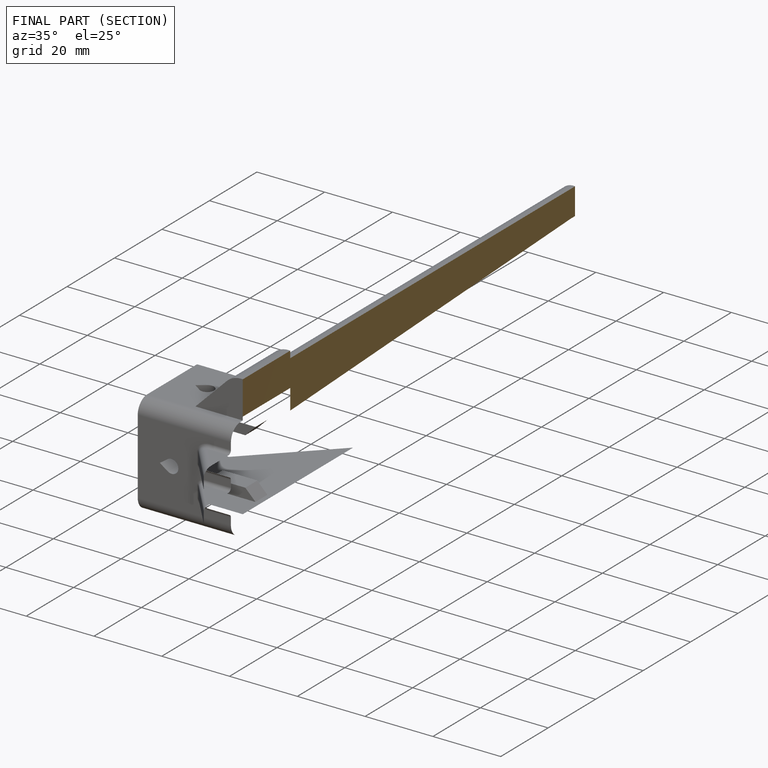
[diagram: finished part — half-section view (interior)]
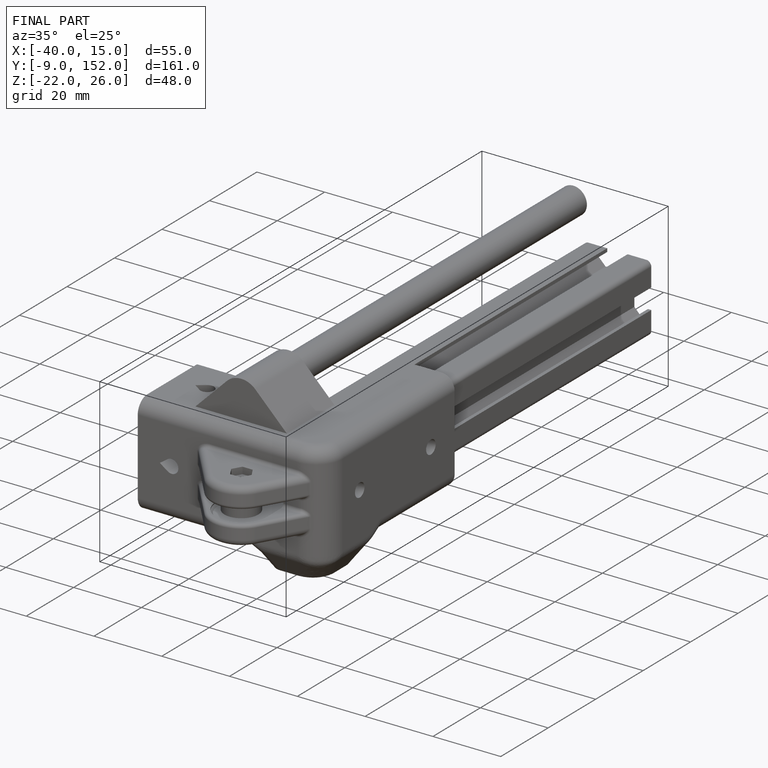
[diagram: finished part — iso view with bounding-box wireframe]
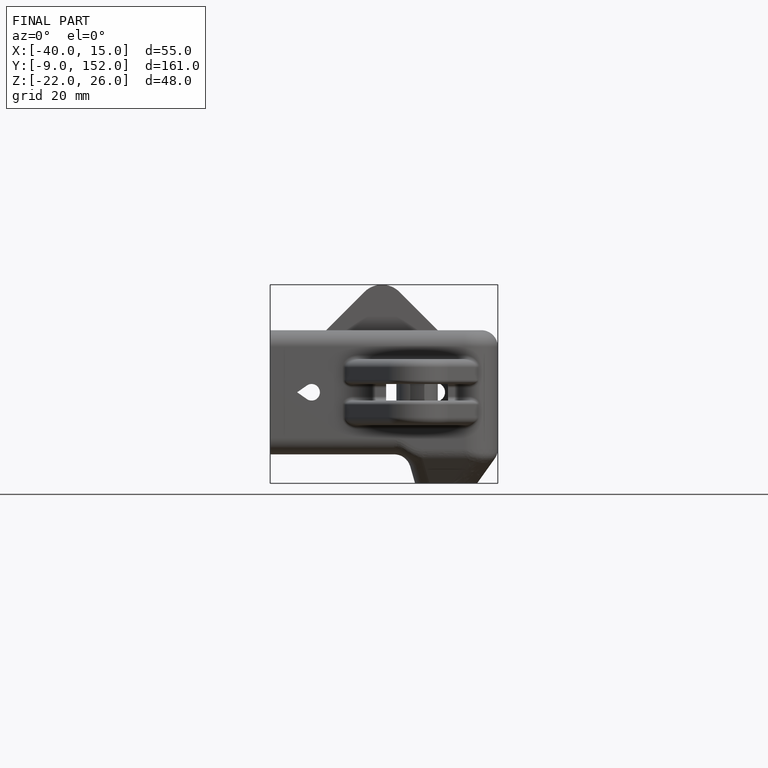
[diagram: finished part — front view with bounding-box wireframe]
